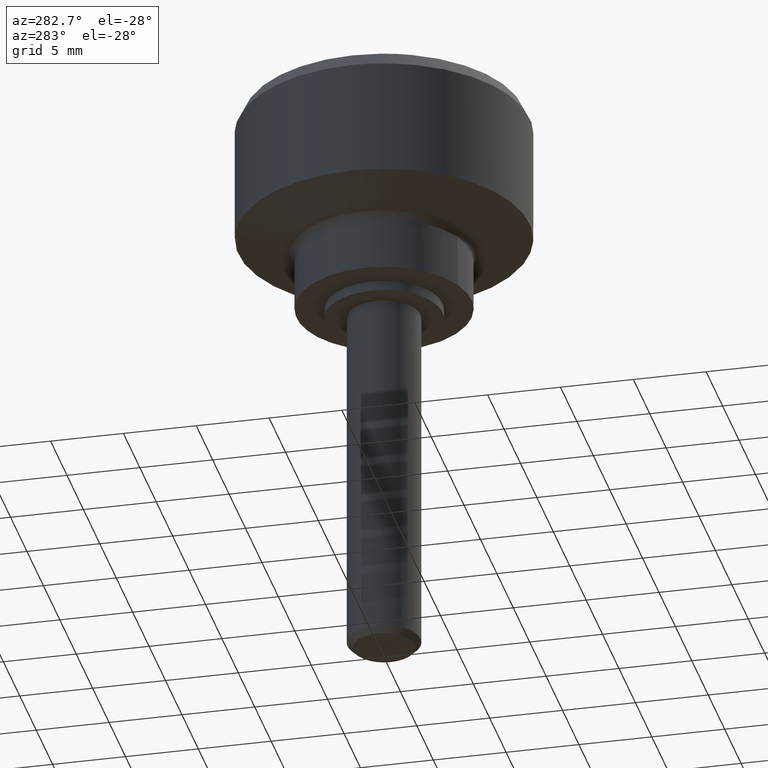
[diagram: clean part render]
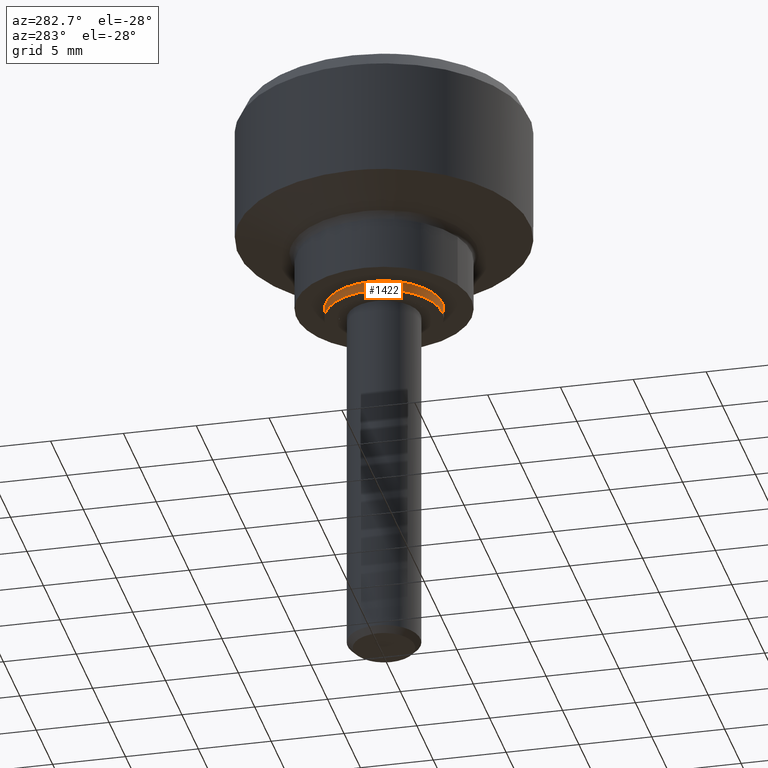
[diagram: same view with one face highlighted and labeled with its STEP entity id]
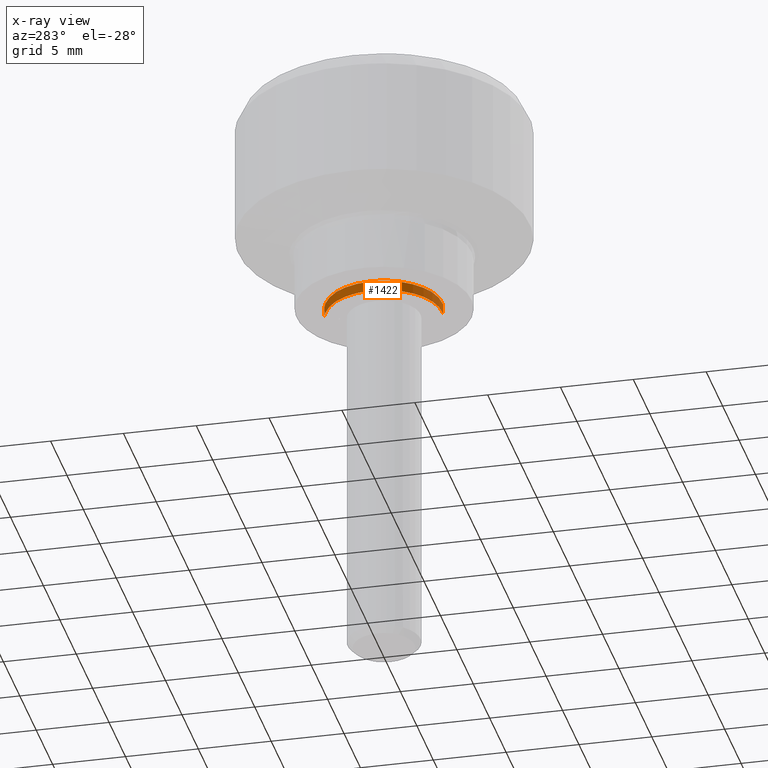
[diagram: x-ray of the same camera — body ghosted, the highlighted face saturated]
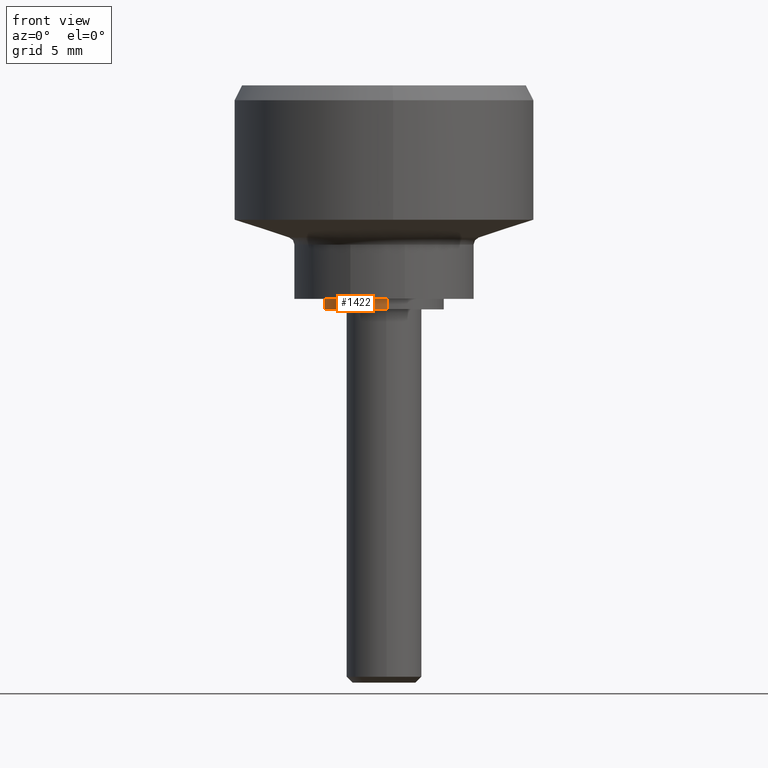
[diagram: same view with one face highlighted and labeled with its STEP entity id]
A machine part, auxiliary view. The second image highlights one B-rep face of the part: STEP entity #1422.
The next image is the same camera in x-ray: the body ghosted, the highlighted face saturated — about 0% of this face is hidden behind the body in this view.
A second angle (front view) of the same face is appended — the face is thin or edge-on in the first view.
In plain terms, the highlighted face is a freeform B-spline surface patch.
Its self-contained STEP definition (entity closure, byte-faithful):
#1259=CARTESIAN_POINT('',(-0.472136938659663,3.972038105450787,2.839428E-017));
#1260=VERTEX_POINT('',#1259);
#1278=CARTESIAN_POINT('',(-0.472136938659663,3.972038105450787,0.700004000000106));
#1279=VERTEX_POINT('',#1278);
#1280=CARTESIAN_POINT('',(-0.472136938659663,3.972038105450787,0.700004000000106));
#1281=CARTESIAN_POINT('',(-0.472136938659663,3.972038105450787,2.839428E-017));
#1282=QUASI_UNIFORM_CURVE('',1,(#1280,#1281),.UNSPECIFIED.,.F.,.U.);
#1283=EDGE_CURVE('',#1279,#1260,#1282,.T.);
#1302=CARTESIAN_POINT('',(0.244194158180488,-3.992539193684956,0.700004000000106));
#1303=VERTEX_POINT('',#1302);
#1317=CARTESIAN_POINT('',(0.244194158180488,-3.992539193684956,2.949030E-017));
#1318=VERTEX_POINT('',#1317);
#1319=CARTESIAN_POINT('',(0.244194158180488,-3.992539193684956,0.700004000000106));
#1320=CARTESIAN_POINT('',(0.244194158180488,-3.992539193684956,2.949030E-017));
#1321=QUASI_UNIFORM_CURVE('',1,(#1319,#1320),.UNSPECIFIED.,.F.,.U.);
#1322=EDGE_CURVE('',#1303,#1318,#1321,.T.);
#1340=CARTESIAN_POINT('',(0.244194158139428,-3.992539193687467,0.717504100000109));
#1341=CARTESIAN_POINT('',(-3.748345035548039,-4.236733351826894,0.717504100000109));
#1342=CARTESIAN_POINT('',(-3.992539193687467,-0.244194158139428,0.717504100000109));
#1343=CARTESIAN_POINT('',(-4.223144786930110,3.526173963358004,0.717504100000109));
#1344=CARTESIAN_POINT('',(-0.472136938627034,3.972038105454666,0.717504100000109));
#1345=CARTESIAN_POINT('',(0.244194158139428,-3.992539193687467,-0.017937602500003));
#1346=CARTESIAN_POINT('',(-3.748345035548039,-4.236733351826894,-0.017937602500003));
#1347=CARTESIAN_POINT('',(-3.992539193687467,-0.244194158139428,-0.017937602500003));
#1348=CARTESIAN_POINT('',(-4.223144786930110,3.526173963358004,-0.017937602500003));
#1349=CARTESIAN_POINT('',(-0.472136938627034,3.972038105454666,-0.017937602500003));
#1357=(BOUNDED_SURFACE()B_SPLINE_SURFACE(2,1,((#1340,#1345),(#1341,#1346),(#1342,#1347),(#1343,#1348),(#1344,#1349)),.UNSPECIFIED.,.F.,.F.,.U.)B_SPLINE_SURFACE_WITH_KNOTS((3,2,3),(2,2),(0.0,6.627416997969518,12.989737316020260),(0.0,1.0),.UNSPECIFIED.)GEOMETRIC_REPRESENTATION_ITEM()RATIONAL_B_SPLINE_SURFACE(((1.0,1.0),(0.707106781186548,0.707106781186548),(1.0,1.0),(0.718822509939086,0.718822509939086),(0.977505800795127,0.977505800795127)))REPRESENTATION_ITEM('')SURFACE());
#1358=CARTESIAN_POINT('',(-4.0,0.0,0.0));
#1359=VERTEX_POINT('',#1358);
#1360=CARTESIAN_POINT('',(-4.0,0.0,0.0));
#1361=CARTESIAN_POINT('',(-4.000000000000001,3.552698103746691,0.0));
#1362=CARTESIAN_POINT('',(-0.472136938659663,3.972038105450787,2.839428E-017));
#1370=(BOUNDED_CURVE()B_SPLINE_CURVE(2,(#1360,#1361,#1362),.UNSPECIFIED.,.F.,.U.)B_SPLINE_CURVE_WITH_KNOTS((3,3),(0.0,0.229562473512868),.UNSPECIFIED.)CURVE()GEOMETRIC_REPRESENTATION_ITEM()RATIONAL_B_SPLINE_CURVE((1.0,0.731050832856153,0.956026754182443))REPRESENTATION_ITEM(''));
#1371=EDGE_CURVE('',#1359,#1260,#1370,.T.);
#1372=ORIENTED_EDGE('',*,*,#1371,.F.);
#1373=CARTESIAN_POINT('',(0.244194158180488,-3.992539193684956,2.949030E-017));
#1374=CARTESIAN_POINT('',(0.122211053235531,-4.000000000000000,0.0));
#1375=CARTESIAN_POINT('',(0.0,-4.0,0.0));
#1376=CARTESIAN_POINT('',(-4.000000000000000,-4.000000000000000,0.0));
#1377=CARTESIAN_POINT('',(-4.0,0.0,0.0));
#1385=(BOUNDED_CURVE()B_SPLINE_CURVE(2,(#1373,#1374,#1375,#1376,#1377),.UNSPECIFIED.,.F.,.U.)B_SPLINE_CURVE_WITH_KNOTS((3,2,3),(0.739332962238419,0.750000000000000,1.0),.UNSPECIFIED.)CURVE()GEOMETRIC_REPRESENTATION_ITEM()RATIONAL_B_SPLINE_CURVE((0.976072041665595,0.987502787899224,1.0,0.707106781186548,1.0))REPRESENTATION_ITEM(''));
#1386=EDGE_CURVE('',#1318,#1359,#1385,.T.);
#1387=ORIENTED_EDGE('',*,*,#1386,.F.);
#1388=ORIENTED_EDGE('',*,*,#1322,.F.);
#1389=CARTESIAN_POINT('',(-4.0,0.0,0.700004000000106));
#1390=VERTEX_POINT('',#1389);
#1391=CARTESIAN_POINT('',(0.244194158180488,-3.992539193684956,0.700004000000106));
#1392=CARTESIAN_POINT('',(0.122211053235531,-4.000000000000000,0.700004000000106));
#1393=CARTESIAN_POINT('',(0.0,-4.0,0.700004000000106));
#1394=CARTESIAN_POINT('',(-4.000000000000000,-4.000000000000000,0.700004000000106));
#1395=CARTESIAN_POINT('',(-4.0,0.0,0.700004000000106));
#1403=(BOUNDED_CURVE()B_SPLINE_CURVE(2,(#1391,#1392,#1393,#1394,#1395),.UNSPECIFIED.,.F.,.U.)B_SPLINE_CURVE_WITH_KNOTS((3,2,3),(0.739332962238419,0.750000000000000,1.0),.UNSPECIFIED.)CURVE()GEOMETRIC_REPRESENTATION_ITEM()RATIONAL_B_SPLINE_CURVE((0.976072041665595,0.987502787899224,1.0,0.707106781186548,1.0))REPRESENTATION_ITEM(''));
#1404=EDGE_CURVE('',#1303,#1390,#1403,.T.);
#1405=ORIENTED_EDGE('',*,*,#1404,.T.);
#1406=CARTESIAN_POINT('',(-4.0,0.0,0.700004000000106));
#1407=CARTESIAN_POINT('',(-4.000000000000001,3.552698103746692,0.700004000000106));
#1408=CARTESIAN_POINT('',(-0.472136938659663,3.972038105450787,0.700004000000106));
#1416=(BOUNDED_CURVE()B_SPLINE_CURVE(2,(#1406,#1407,#1408),.UNSPECIFIED.,.F.,.U.)B_SPLINE_CURVE_WITH_KNOTS((3,3),(0.0,0.229562473512868),.UNSPECIFIED.)CURVE()GEOMETRIC_REPRESENTATION_ITEM()RATIONAL_B_SPLINE_CURVE((1.0,0.731050832856153,0.956026754182443))REPRESENTATION_ITEM(''));
#1417=EDGE_CURVE('',#1390,#1279,#1416,.T.);
#1418=ORIENTED_EDGE('',*,*,#1417,.T.);
#1419=ORIENTED_EDGE('',*,*,#1283,.T.);
#1420=EDGE_LOOP('',(#1372,#1387,#1388,#1405,#1418,#1419));
#1421=FACE_OUTER_BOUND('',#1420,.T.);
#1422=ADVANCED_FACE('',(#1421),#1357,.T.);